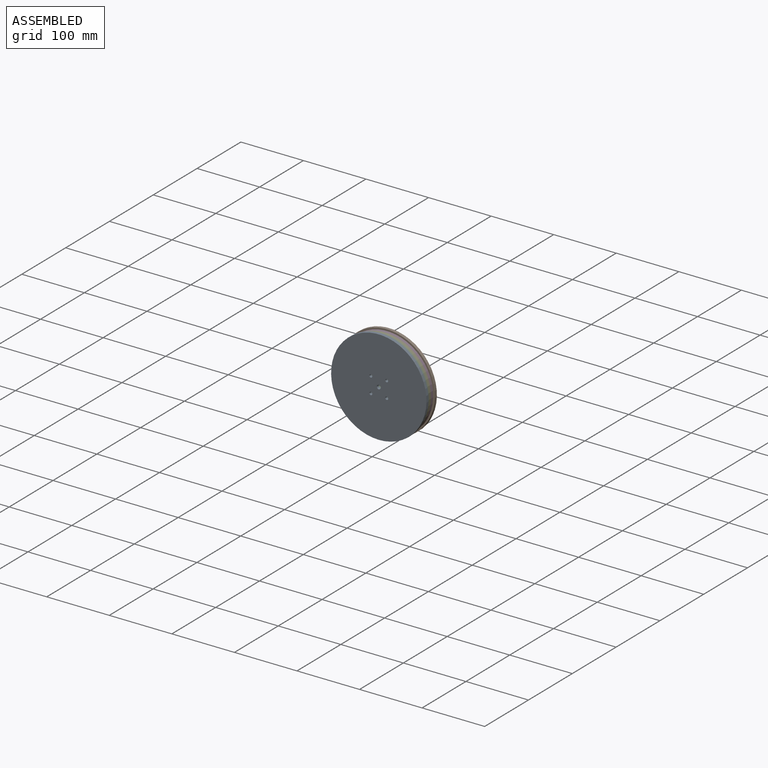
[diagram: assembled view]
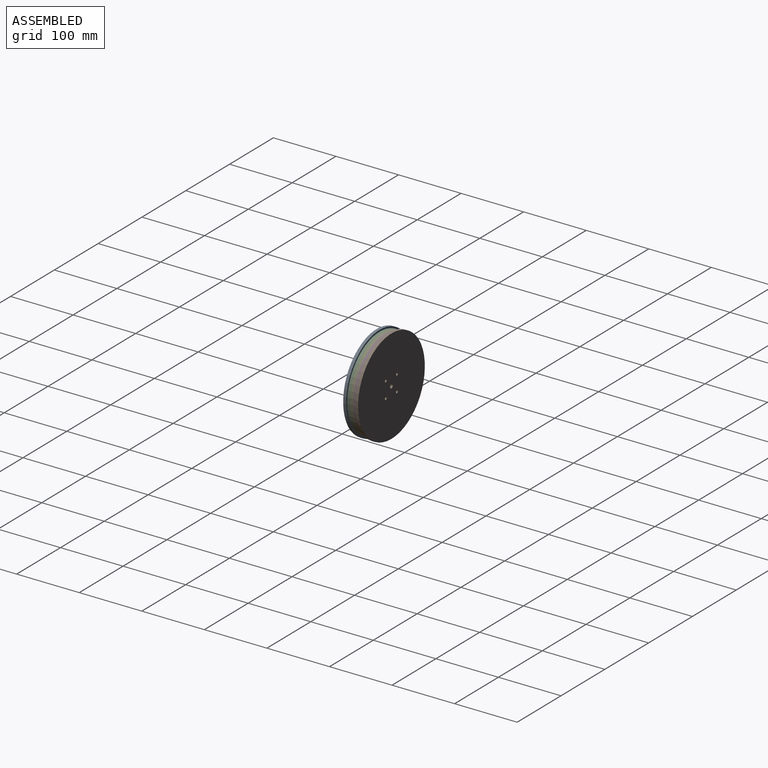
[diagram: assembled view, second angle]
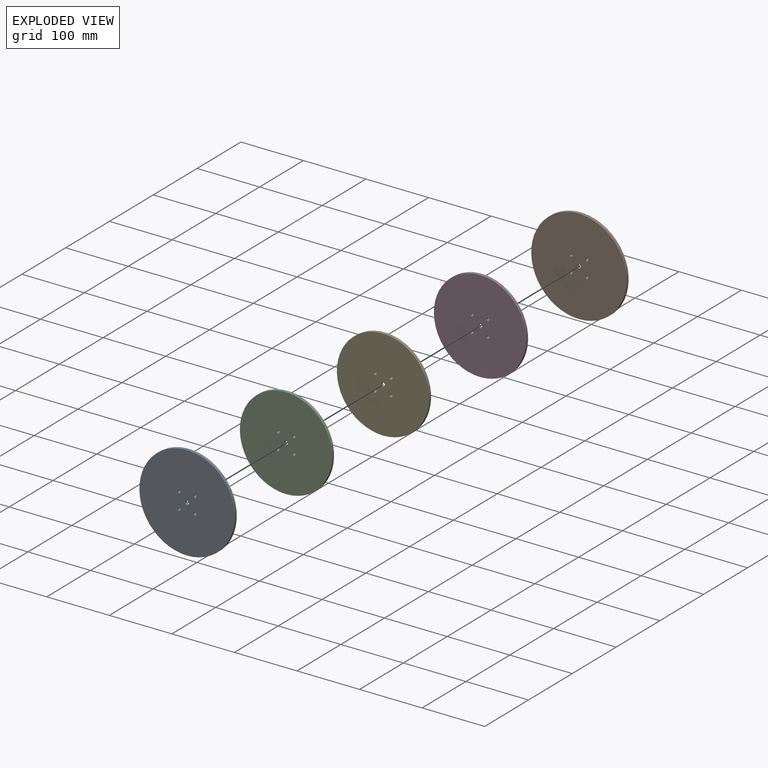
[diagram: exploded view]
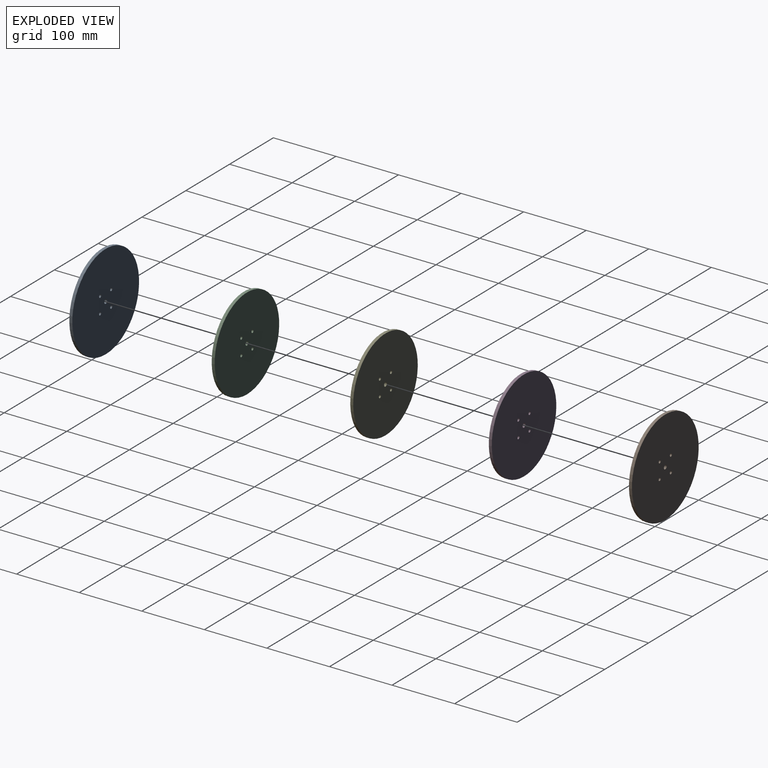
[diagram: exploded view, second angle]
ASSEMBLY  parts=5 mates=4
PART A: 8 faces, bbox 152.4x4.8x152.4 mm
  f0: cylinder r=2.32mm len=4.76mm, axis (0,1,0), area 69.5mm2, adj f6,f7
  f1: cylinder r=2.32mm len=4.76mm, axis (0,1,0), area 69.5mm2, adj f6,f7
  f2: cylinder r=2.32mm len=4.76mm, axis (0,1,0), area 69.5mm2, adj f6,f7
  f3: cylinder r=2.32mm len=4.76mm, axis (0,1,0), area 69.5mm2, adj f6,f7
  f4: cylinder r=76.2mm len=152.4mm, axis (0,1,0), area 2280.2mm2, adj f6,f7
  f5: cylinder r=3.17mm len=6.35mm, axis (0,1,0), area 95mm2, adj f6,f7
  f6: plane 152.4x152.4mm, normal (0,-1,0), area 18141.9mm2, adj f0,f1,f2,f3,f4,f5
  f7: plane 152.4x152.4mm, normal (0,1,0), area 18141.9mm2, adj f0,f1,f2,f3,f4,f5
PART B: same geometry as A
PART C: 8 faces, bbox 147.3x4.8x147.3 mm
  f0: cylinder r=3.17mm len=6.35mm, axis (0,1,0), area 95mm2, adj f6,f7
  f1: cylinder r=2.32mm len=4.76mm, axis (0,1,0), area 69.5mm2, adj f6,f7
  f2: cylinder r=2.32mm len=4.76mm, axis (0,1,0), area 69.5mm2, adj f6,f7
  f3: cylinder r=2.32mm len=4.76mm, axis (0,1,0), area 69.5mm2, adj f6,f7
  f4: cylinder r=2.32mm len=4.76mm, axis (0,1,0), area 69.5mm2, adj f6,f7
  f5: cylinder r=73.66mm len=147.32mm, axis (0,1,0), area 2204.2mm2, adj f6,f7
  f6: plane 147.32x147.32mm, normal (0,-1,0), area 16946.1mm2, adj f0,f1,f2,f3,f4,f5
  f7: plane 147.32x147.32mm, normal (0,1,0), area 16946.1mm2, adj f0,f1,f2,f3,f4,f5
PART D: same geometry as C
PART E: same geometry as C
PLACE A t=(81.24,-53.22,13.73)mm
PLACE B t=(81.24,-34.17,13.73)mm
PLACE C t=(81.24,-48.46,13.73)mm
PLACE D t=(81.24,-38.93,13.73)mm
PLACE E t=(81.24,-43.69,13.73)mm
MATE cylindrical E.f5 <-> C.f0  axis (0,-1,0) through (81.24,-48.46,13.73)mm
MATE cylindrical A.f5 <-> C.f5  axis (0,1,0) through (81.24,-53.22,13.73)mm
MATE cylindrical D.f5 <-> E.f5  axis (0,-1,0) through (81.24,-43.69,13.73)mm
MATE cylindrical D.f5 <-> B.f5  axis (0,1,0) through (81.24,-38.93,13.73)mm
